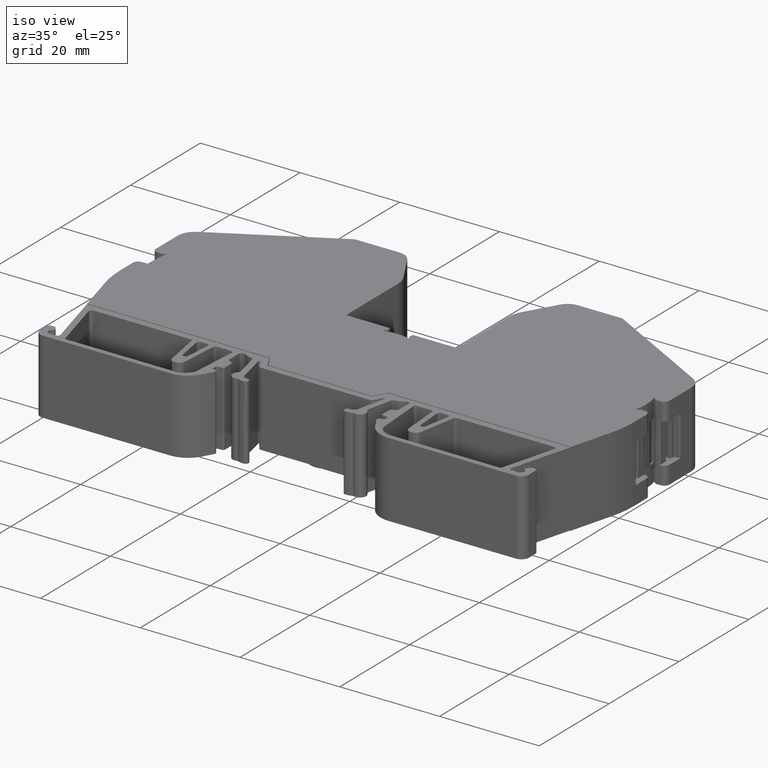
[diagram: clean part render]
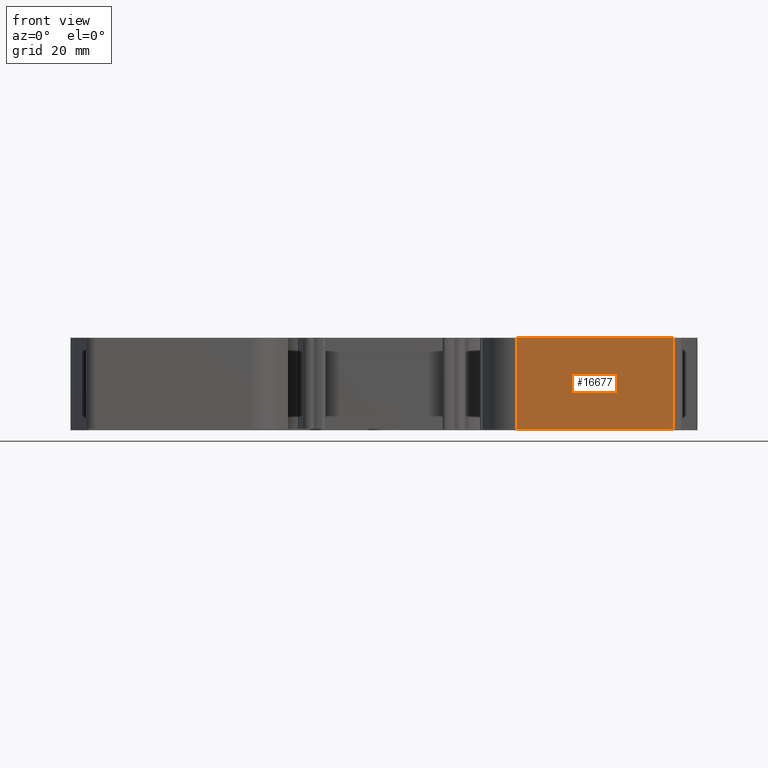
[diagram: tour spotlight — one face highlighted and labeled with its STEP entity id]
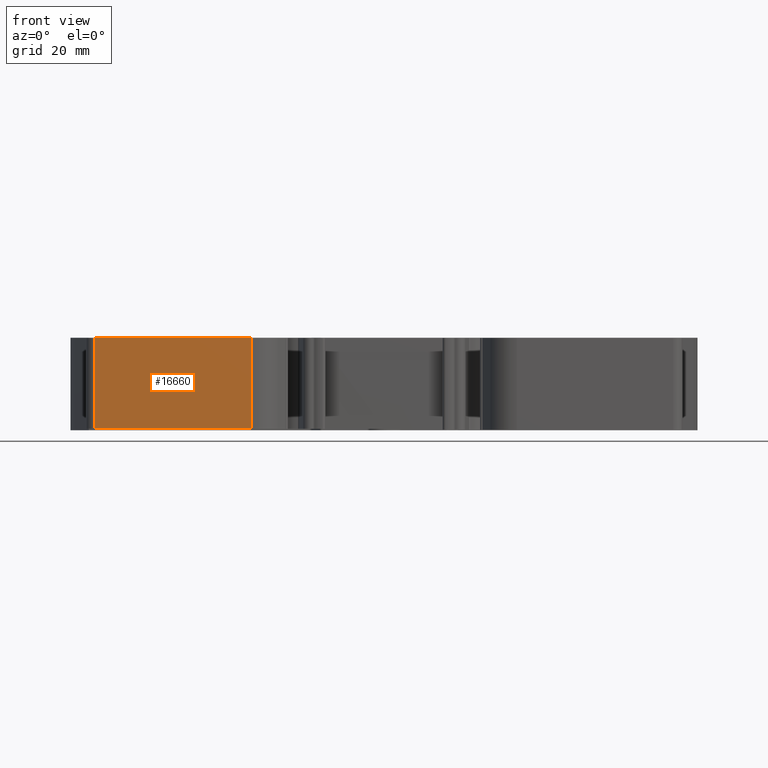
[diagram: tour spotlight — one face highlighted and labeled with its STEP entity id]
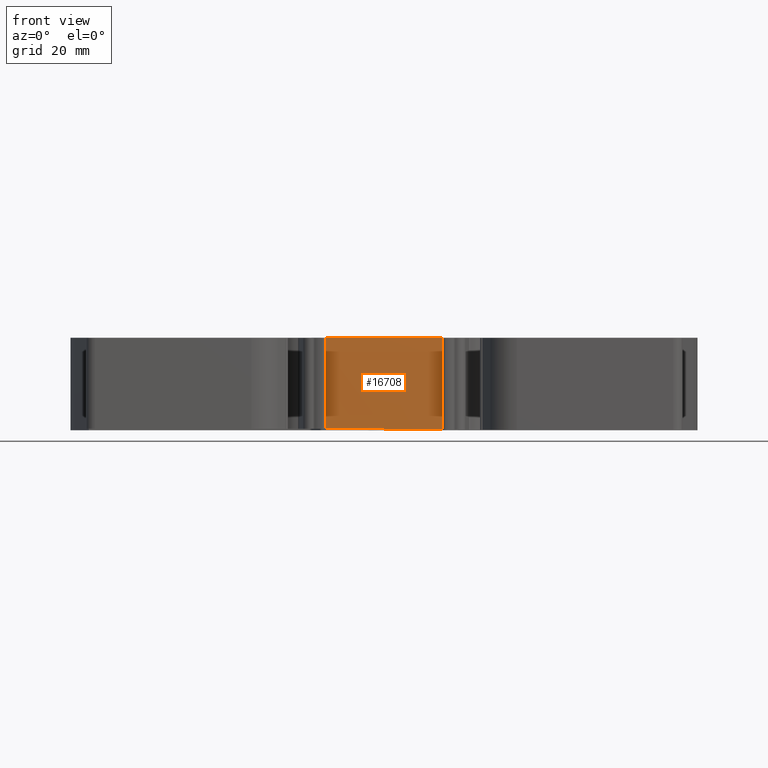
[diagram: tour spotlight — one face highlighted and labeled with its STEP entity id]
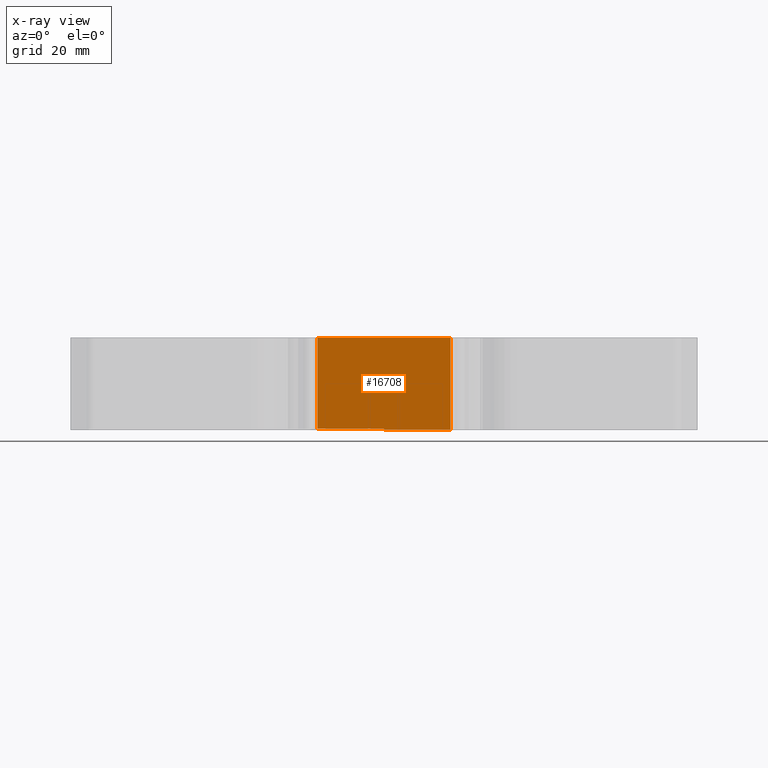
[diagram: x-ray of the same camera — body ghosted, this tour face saturated]
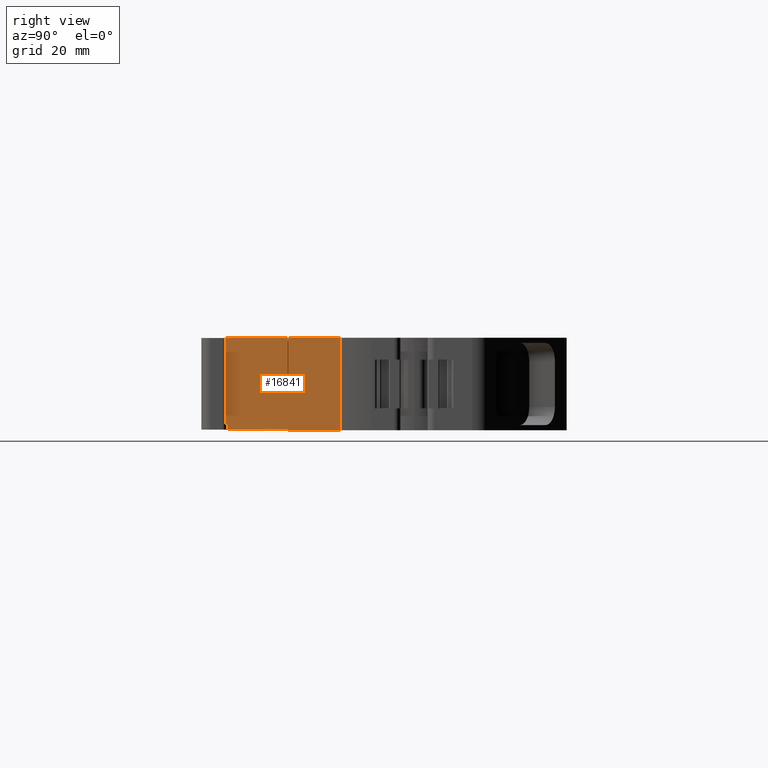
[diagram: tour spotlight — one face highlighted and labeled with its STEP entity id]
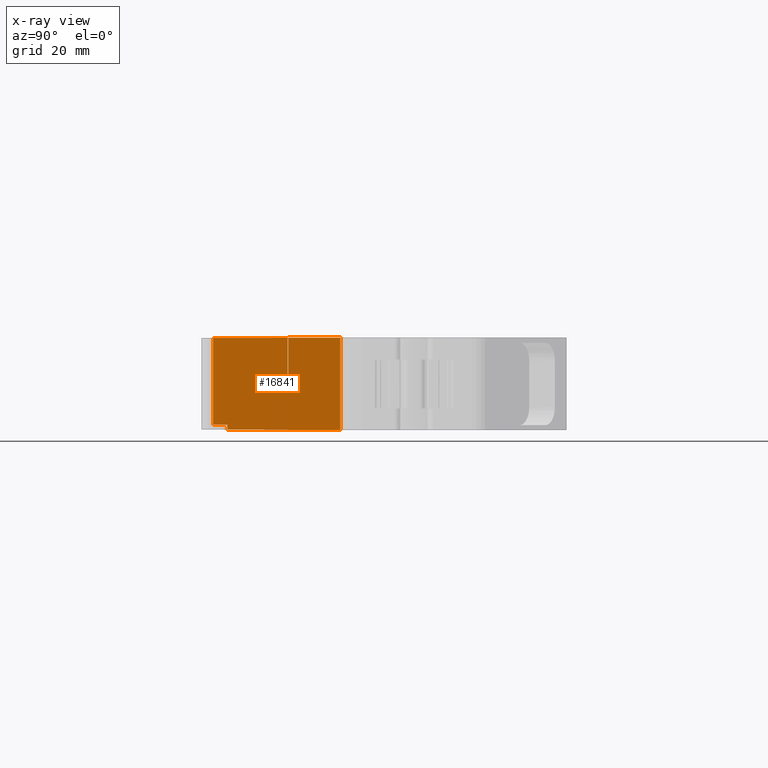
[diagram: x-ray of the same camera — body ghosted, this tour face saturated]
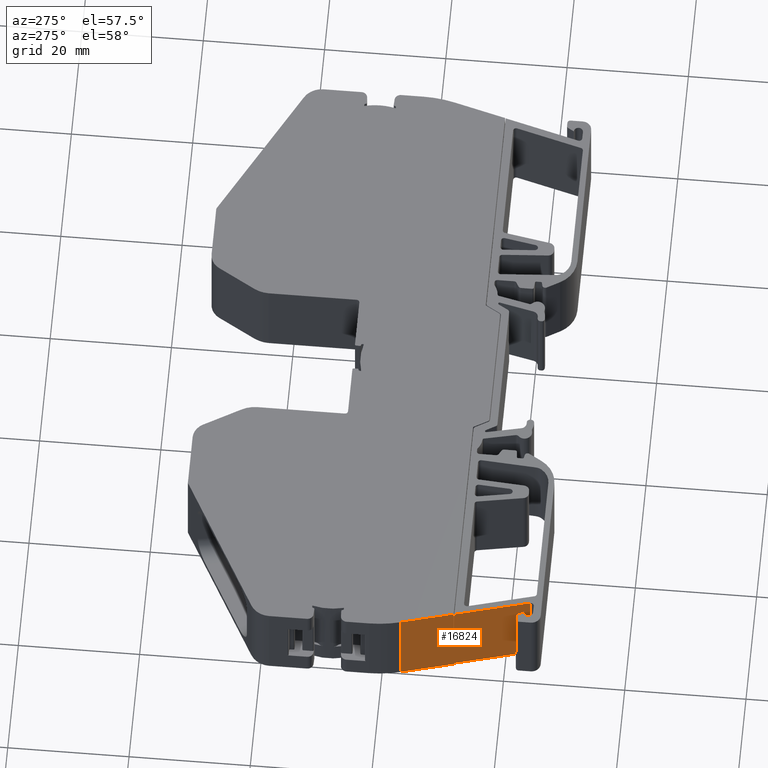
[diagram: tour spotlight — one face highlighted and labeled with its STEP entity id]
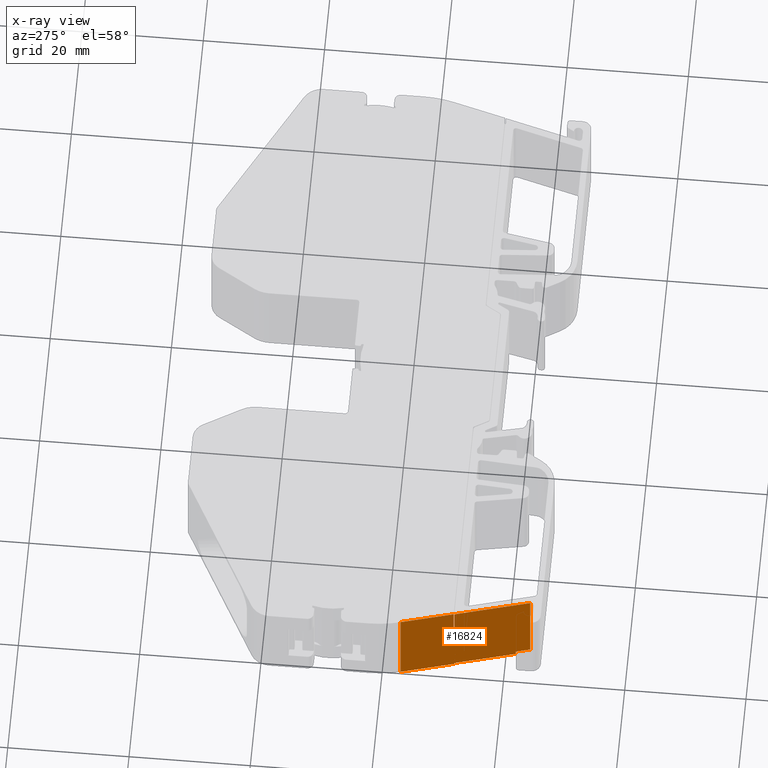
[diagram: x-ray of the same camera — body ghosted, this tour face saturated]
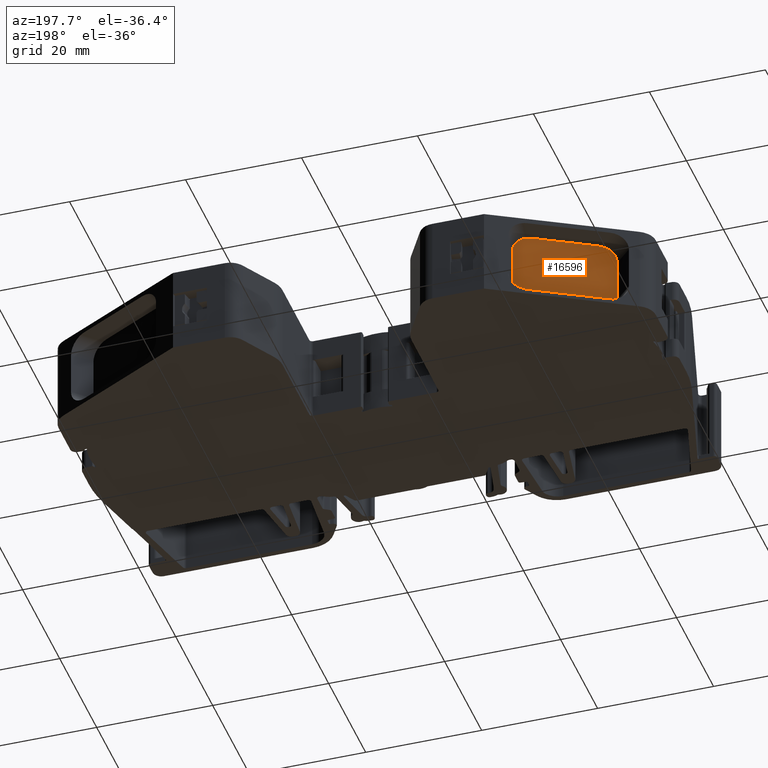
[diagram: tour spotlight — one face highlighted and labeled with its STEP entity id]
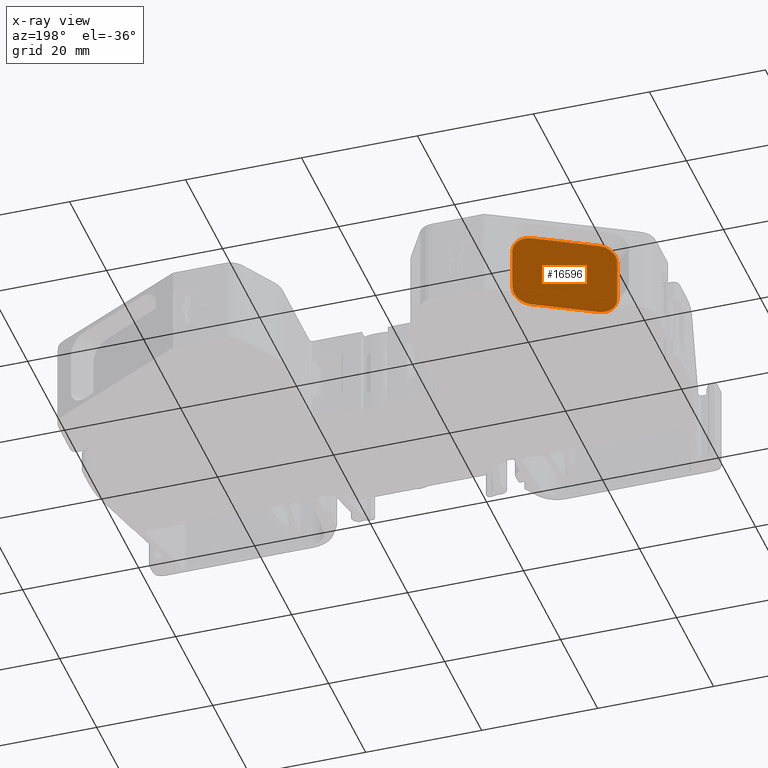
[diagram: x-ray of the same camera — body ghosted, this tour face saturated]
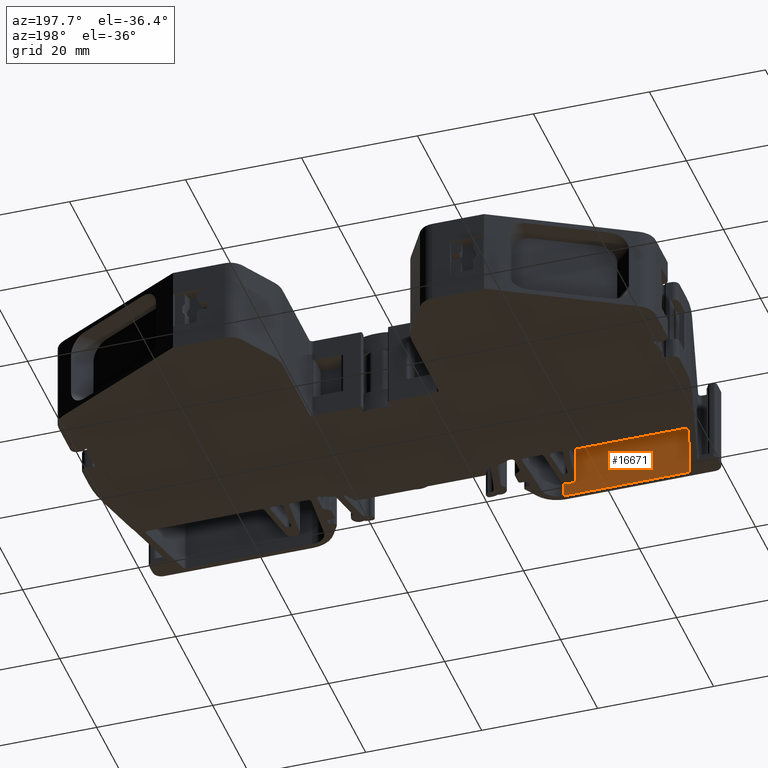
[diagram: tour spotlight — one face highlighted and labeled with its STEP entity id]
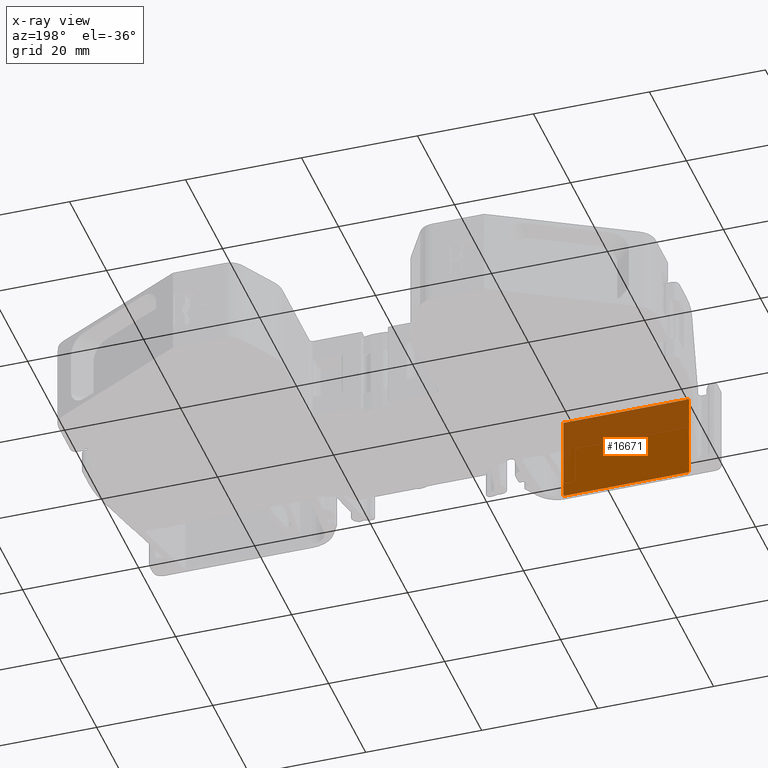
[diagram: x-ray of the same camera — body ghosted, this tour face saturated]
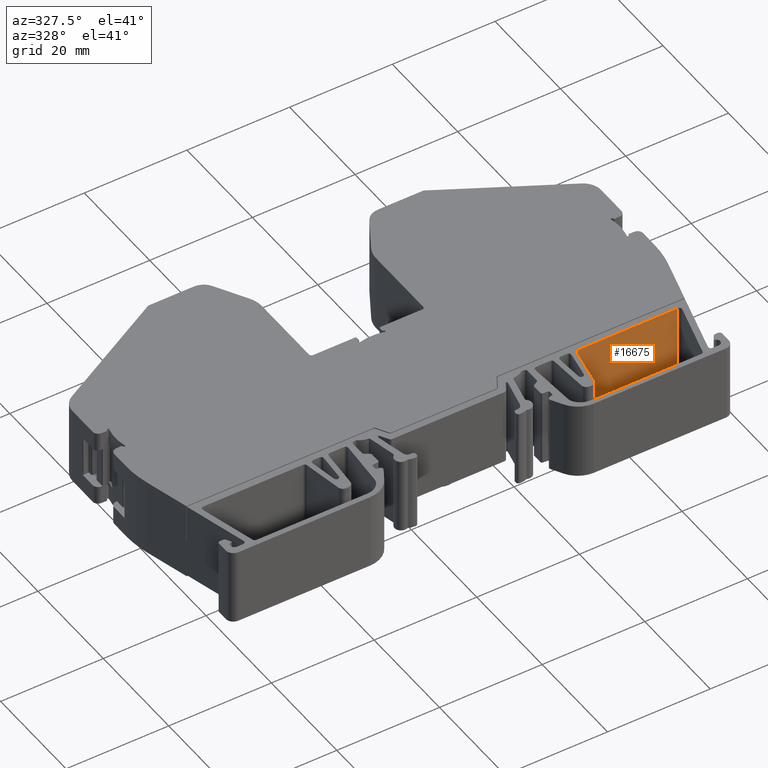
[diagram: tour spotlight — one face highlighted and labeled with its STEP entity id]
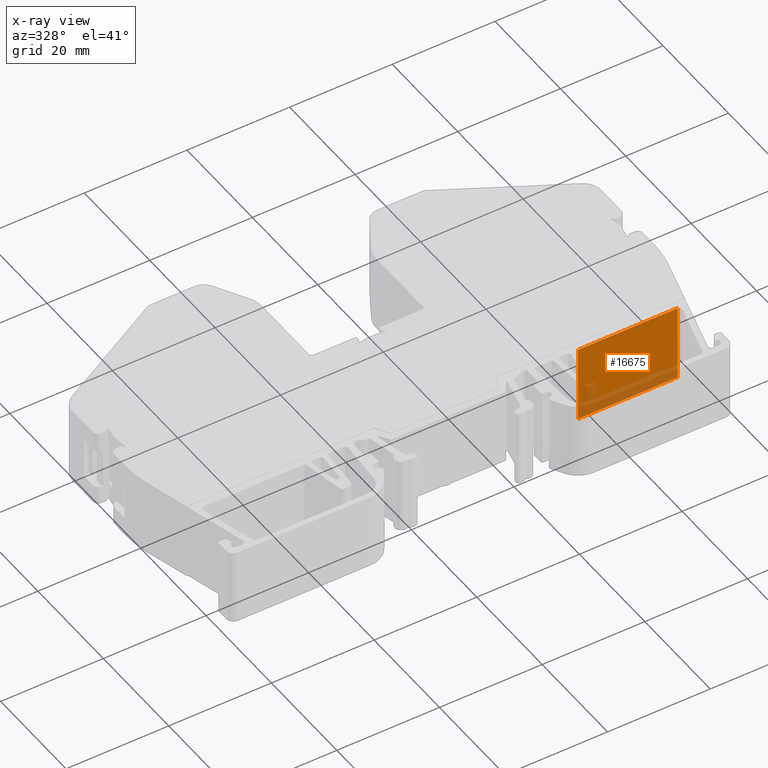
[diagram: x-ray of the same camera — body ghosted, this tour face saturated]
A machine part: a face-by-face anatomy tour. The part has 469 B-rep faces; the first image is the clean iso view, then the 8 largest visible faces are spotlighted one at a time (largest first), each with its STEP entity span.

Face 1 — front view, entity #16677. In plain terms, the highlighted planar face has unit normal (0, -1, 0).
Definition (entity closure, byte-faithful):
#1433 = CARTESIAN_POINT ( 'NONE',  ( 1351.807268331747100, 394.0762368409457400, 0.0000000000000000000 ) ) ;
#1434 = CARTESIAN_POINT ( 'NONE',  ( 1377.505505734704000, 394.0762368409457400, 15.05000000000000100 ) ) ;
#1450 = CARTESIAN_POINT ( 'NONE',  ( 1351.807268331747100, 394.0762368409455700, 15.05000000000000100 ) ) ;
#1491 = CARTESIAN_POINT ( 'NONE',  ( 1377.505505734704000, 394.0762368409459700, 0.0000000000000000000 ) ) ;
#3819 = EDGE_CURVE ( 'NONE', #11757, #11683, #9414, .T. ) ;
#3878 = EDGE_CURVE ( 'NONE', #11658, #11683, #9463, .T. ) ;
#3882 = EDGE_CURVE ( 'NONE', #11664, #11658, #9519, .T. ) ;
#3896 = EDGE_CURVE ( 'NONE', #11757, #11664, #9510, .T. ) ;
#5151 = EDGE_LOOP ( 'NONE', ( #12714, #12741, #12710, #12814 ) ) ;
#6848 = AXIS2_PLACEMENT_3D ( 'NONE', #10319, #10340, #10342 ) ;
#9411 = DIRECTION ( 'NONE',  ( -0.0000000000000000000, 0.0000000000000000000, 1.000000000000000000 ) ) ;
#9414 = LINE ( 'NONE', #9441, #13356 ) ;
#9441 = CARTESIAN_POINT ( 'NONE',  ( 1377.505505734704000, 394.0762368409459700, 15.00000000000000000 ) ) ;
#9463 = LINE ( 'NONE', #9473, #13338 ) ;
#9473 = CARTESIAN_POINT ( 'NONE',  ( 1317.764323151782500, 394.0762368409455700, 15.05000000000000100 ) ) ;
#9510 = LINE ( 'NONE', #9514, #13369 ) ;
#9514 = CARTESIAN_POINT ( 'NONE',  ( 1284.302739126161900, 394.0762368409459700, 0.0000000000000000000 ) ) ;
#9516 = DIRECTION ( 'NONE',  ( -0.0000000000000000000, -0.0000000000000000000, 1.000000000000000000 ) ) ;
#9519 = LINE ( 'NONE', #9522, #13360 ) ;
#9522 = CARTESIAN_POINT ( 'NONE',  ( 1351.807268331748000, 394.0762368409455700, 15.00000000000000000 ) ) ;
#9539 = DIRECTION ( 'NONE',  ( -1.000000000000000000, 0.0000000000000000000, -0.0000000000000000000 ) ) ;
#9541 = DIRECTION ( 'NONE',  ( 1.000000000000000000, 0.0000000000000000000, -0.0000000000000000000 ) ) ;
#10319 = CARTESIAN_POINT ( 'NONE',  ( 1330.007060531839900, 394.0762368409450000, 15.00000000000000000 ) ) ;
#10329 = PLANE ( 'NONE',  #6848 ) ;
#10340 = DIRECTION ( 'NONE',  ( 1.938070292672565300E-014, -1.000000000000000000, 0.0000000000000000000 ) ) ;
#10342 = DIRECTION ( 'NONE',  ( 1.000000000000000000, 1.938070292672565300E-014, 0.0000000000000000000 ) ) ;
#10343 = FACE_OUTER_BOUND ( 'NONE', #5151, .T. ) ;
#11658 = VERTEX_POINT ( 'NONE', #1450 ) ;
#11664 = VERTEX_POINT ( 'NONE', #1433 ) ;
#11683 = VERTEX_POINT ( 'NONE', #1434 ) ;
#11757 = VERTEX_POINT ( 'NONE', #1491 ) ;
#12710 = ORIENTED_EDGE ( 'NONE', *, *, #3882, .F. ) ;
#12714 = ORIENTED_EDGE ( 'NONE', *, *, #3819, .T. ) ;
#12741 = ORIENTED_EDGE ( 'NONE', *, *, #3878, .F. ) ;
#12814 = ORIENTED_EDGE ( 'NONE', *, *, #3896, .F. ) ;
#13338 = VECTOR ( 'NONE', #9541, 1000.000000000000000 ) ;
#13356 = VECTOR ( 'NONE', #9411, 1000.000000000000000 ) ;
#13360 = VECTOR ( 'NONE', #9516, 1000.000000000000000 ) ;
#13369 = VECTOR ( 'NONE', #9539, 1000.000000000000000 ) ;
#16677 = ADVANCED_FACE ( 'NONE', ( #10343 ), #10329, .T. ) ;

Face 2 — front view, entity #16660. In plain terms, the highlighted planar face has unit normal (-0, -1, 0).
Definition (entity closure, byte-faithful):
#1472 = CARTESIAN_POINT ( 'NONE',  ( 1308.206850678388500, 394.0762368409322700, 15.05000000000000100 ) ) ;
#1481 = CARTESIAN_POINT ( 'NONE',  ( 1282.508613275430000, 394.0762368409324400, 15.05000000000000100 ) ) ;
#1522 = CARTESIAN_POINT ( 'NONE',  ( 1308.206850678388500, 394.0762368409321500, 0.1500000000000006100 ) ) ;
#1525 = CARTESIAN_POINT ( 'NONE',  ( 1282.508613275430000, 394.0762368409322700, 0.1500000000000008300 ) ) ;
#3718 = EDGE_CURVE ( 'NONE', #11717, #11763, #16062, .T. ) ;
#3986 = EDGE_CURVE ( 'NONE', #11699, #11765, #8700, .T. ) ;
#4014 = EDGE_CURVE ( 'NONE', #11765, #11763, #8753, .T. ) ;
#4025 = EDGE_CURVE ( 'NONE', #11717, #11699, #8733, .T. ) ;
#4739 = ORIENTED_EDGE ( 'NONE', *, *, #3986, .F. ) ;
#4741 = ORIENTED_EDGE ( 'NONE', *, *, #4025, .F. ) ;
#4801 = ORIENTED_EDGE ( 'NONE', *, *, #4014, .F. ) ;
#4834 = ORIENTED_EDGE ( 'NONE', *, *, #3718, .T. ) ;
#5145 = EDGE_LOOP ( 'NONE', ( #4739, #4741, #4834, #4801 ) ) ;
#6841 = AXIS2_PLACEMENT_3D ( 'NONE', #10191, #10211, #10237 ) ;
#8699 = CARTESIAN_POINT ( 'NONE',  ( 1308.206850678388500, 394.0762368409321500, 15.00000000000000000 ) ) ;
#8700 = LINE ( 'NONE', #8699, #13429 ) ;
#8719 = DIRECTION ( 'NONE',  ( 0.0000000000000000000, 0.0000000000000000000, -1.000000000000000000 ) ) ;
#8723 = DIRECTION ( 'NONE',  ( -1.000000000000000000, 0.0000000000000000000, -0.0000000000000000000 ) ) ;
#8733 = LINE ( 'NONE', #8762, #13444 ) ;
#8753 = LINE ( 'NONE', #8757, #13420 ) ;
#8757 = CARTESIAN_POINT ( 'NONE',  ( 1375.711379883971900, 394.0762368409321500, 0.1499999999999999900 ) ) ;
#8759 = DIRECTION ( 'NONE',  ( 1.000000000000000000, 0.0000000000000000000, -0.0000000000000000000 ) ) ;
#8762 = CARTESIAN_POINT ( 'NONE',  ( 1317.764323151782500, 394.0762368409324400, 15.05000000000000100 ) ) ;
#10191 = CARTESIAN_POINT ( 'NONE',  ( 1330.007058478294100, 394.0762368409315300, 15.00000000000000000 ) ) ;
#10192 = FACE_OUTER_BOUND ( 'NONE', #5145, .T. ) ;
#10205 = PLANE ( 'NONE',  #6841 ) ;
#10211 = DIRECTION ( 'NONE',  ( -1.938070292672565300E-014, -1.000000000000000000, 0.0000000000000000000 ) ) ;
#10237 = DIRECTION ( 'NONE',  ( 1.000000000000000000, -1.938070292672565300E-014, 0.0000000000000000000 ) ) ;
#11699 = VERTEX_POINT ( 'NONE', #1472 ) ;
#11717 = VERTEX_POINT ( 'NONE', #1481 ) ;
#11763 = VERTEX_POINT ( 'NONE', #1525 ) ;
#11765 = VERTEX_POINT ( 'NONE', #1522 ) ;
#13295 = VECTOR ( 'NONE', #16064, 1000.000000000000000 ) ;
#13420 = VECTOR ( 'NONE', #8723, 1000.000000000000000 ) ;
#13429 = VECTOR ( 'NONE', #8719, 1000.000000000000000 ) ;
#13444 = VECTOR ( 'NONE', #8759, 1000.000000000000000 ) ;
#16038 = CARTESIAN_POINT ( 'NONE',  ( 1282.508613275430000, 394.0762368409324400, 15.00000000000000000 ) ) ;
#16062 = LINE ( 'NONE', #16038, #13295 ) ;
#16064 = DIRECTION ( 'NONE',  ( -0.0000000000000000000, -0.0000000000000000000, -1.000000000000000000 ) ) ;
#16660 = ADVANCED_FACE ( 'NONE', ( #10192 ), #10205, .T. ) ;

Face 3 — front view, entity #16708. An x-ray twin of the same camera follows (body ghosted, this face saturated) — the face is partly hidden behind the body. In plain terms, the highlighted planar face has unit normal (-0, 1, 0).
Definition (entity closure, byte-faithful):
#1145 = CARTESIAN_POINT ( 'NONE',  ( 1319.058253966650000, 404.4015270294932500, 15.05000000000000200 ) ) ;
#1283 = CARTESIAN_POINT ( 'NONE',  ( 1340.955865043486000, 404.4015270294959200, 15.05000000000000200 ) ) ;
#1342 = CARTESIAN_POINT ( 'NONE',  ( 1319.058253966650000, 404.4015270294875100, 0.1500000000000003800 ) ) ;
#1352 = CARTESIAN_POINT ( 'NONE',  ( 1340.955865043486000, 404.4015270294959800, 0.0000000000000000000 ) ) ;
#1422 = CARTESIAN_POINT ( 'NONE',  ( 1330.033742804469100, 404.4015270294959200, 0.0000000000000000000 ) ) ;
#1461 = CARTESIAN_POINT ( 'NONE',  ( 1329.980376204197900, 404.4015270295032600, 0.1500000000000004700 ) ) ;
#1535 = CARTESIAN_POINT ( 'NONE',  ( 1330.007059505069900, 404.4014676951964600, 0.1500000000000008300 ) ) ;
#2876 = DIRECTION ( 'NONE',  ( -5.070064584348280300E-015, 1.000000000000000000, 0.0000000000000000000 ) ) ;
#2921 = PLANE ( 'NONE',  #6938 ) ;
#2922 = FACE_OUTER_BOUND ( 'NONE', #5095, .T. ) ;
#2932 = CARTESIAN_POINT ( 'NONE',  ( 1330.007060531841900, 404.4015270294959800, 15.00000000000000000 ) ) ;
#2965 = DIRECTION ( 'NONE',  ( -1.000000000000000000, -5.070064584348280300E-015, 0.0000000000000000000 ) ) ;
#3357 = EDGE_CURVE ( 'NONE', #11393, #11311, #12855, .T. ) ;
#3499 = EDGE_CURVE ( 'NONE', #11387, #11362, #15120, .T. ) ;
#3931 = EDGE_CURVE ( 'NONE', #11746, #11647, #14051, .T. ) ;
#3948 = EDGE_CURVE ( 'NONE', #11647, #11393, #8657, .T. ) ;
#3980 = EDGE_CURVE ( 'NONE', #11311, #11387, #8705, .T. ) ;
#4064 = EDGE_CURVE ( 'NONE', #11649, #11746, #14053, .T. ) ;
#4073 = EDGE_CURVE ( 'NONE', #11362, #11649, #8823, .T. ) ;
#5095 = EDGE_LOOP ( 'NONE', ( #12879, #12895, #12831, #12871, #12925, #12878, #12793 ) ) ;
#6938 = AXIS2_PLACEMENT_3D ( 'NONE', #2932, #2876, #2965 ) ;
#8631 = CARTESIAN_POINT ( 'NONE',  ( 1375.711379883971900, 404.4015270295012100, 0.1499999999999999900 ) ) ;
#8635 = CARTESIAN_POINT ( 'NONE',  ( 1329.998164954167400, 404.4014083608969400, 0.1500000000000008300 ) ) ;
#8638 = DIRECTION ( 'NONE',  ( -1.000000000000000000, 0.0000000000000000000, -0.0000000000000000000 ) ) ;
#8646 = CARTESIAN_POINT ( 'NONE',  ( 1329.989270403266100, 404.4014479176224800, 0.1500000000000008300 ) ) ;
#8657 = LINE ( 'NONE', #8631, #13380 ) ;
#8666 = CARTESIAN_POINT ( 'NONE',  ( 1329.980376204197900, 404.4015270295032600, 0.1500000000000004700 ) ) ;
#8669 = CARTESIAN_POINT ( 'NONE',  ( 1330.007059505069900, 404.4014676951964600, 0.1500000000000008300 ) ) ;
#8682 = CARTESIAN_POINT ( 'NONE',  ( 1317.764323151782500, 404.4015270294959200, 15.05000000000000100 ) ) ;
#8705 = LINE ( 'NONE', #8682, #13412 ) ;
#8707 = DIRECTION ( 'NONE',  ( 1.000000000000000000, 0.0000000000000000000, -0.0000000000000000000 ) ) ;
#8816 = CARTESIAN_POINT ( 'NONE',  ( 1330.015954055481200, 404.4014083608969400, 0.1000000000000005600 ) ) ;
#8819 = CARTESIAN_POINT ( 'NONE',  ( 1330.024848605892000, 404.4014479176182100, 0.05000000000000027300 ) ) ;
#8821 = CARTESIAN_POINT ( 'NONE',  ( 1330.033742804469100, 404.4015270294959200, 0.0000000000000000000 ) ) ;
#8823 = LINE ( 'NONE', #8851, #13765 ) ;
#8841 = DIRECTION ( 'NONE',  ( -1.000000000000000000, 0.0000000000000000000, -0.0000000000000000000 ) ) ;
#8847 = CARTESIAN_POINT ( 'NONE',  ( 1330.007059505069900, 404.4014676951964600, 0.1500000000000008300 ) ) ;
#8851 = CARTESIAN_POINT ( 'NONE',  ( 1284.302739126161900, 404.4015270294960400, 0.0000000000000000000 ) ) ;
#11311 = VERTEX_POINT ( 'NONE', #1145 ) ;
#11362 = VERTEX_POINT ( 'NONE', #1352 ) ;
#11387 = VERTEX_POINT ( 'NONE', #1283 ) ;
#11393 = VERTEX_POINT ( 'NONE', #1342 ) ;
#11647 = VERTEX_POINT ( 'NONE', #1461 ) ;
#11649 = VERTEX_POINT ( 'NONE', #1422 ) ;
#11746 = VERTEX_POINT ( 'NONE', #1535 ) ;
#12793 = ORIENTED_EDGE ( 'NONE', *, *, #3980, .F. ) ;
#12831 = ORIENTED_EDGE ( 'NONE', *, *, #3931, .F. ) ;
#12850 = CARTESIAN_POINT ( 'NONE',  ( 1319.058253966650000, 404.4015270294959200, 15.00000000000000000 ) ) ;
#12855 = LINE ( 'NONE', #12850, #13793 ) ;
#12871 = ORIENTED_EDGE ( 'NONE', *, *, #4064, .F. ) ;
#12872 = DIRECTION ( 'NONE',  ( 0.0000000000000000000, 0.0000000000000000000, 1.000000000000000000 ) ) ;
#12878 = ORIENTED_EDGE ( 'NONE', *, *, #3499, .F. ) ;
#12879 = ORIENTED_EDGE ( 'NONE', *, *, #3357, .F. ) ;
#12895 = ORIENTED_EDGE ( 'NONE', *, *, #3948, .F. ) ;
#12925 = ORIENTED_EDGE ( 'NONE', *, *, #4073, .F. ) ;
#13380 = VECTOR ( 'NONE', #8638, 1000.000000000000000 ) ;
#13412 = VECTOR ( 'NONE', #8707, 1000.000000000000000 ) ;
#13765 = VECTOR ( 'NONE', #8841, 1000.000000000000000 ) ;
#13793 = VECTOR ( 'NONE', #12872, 1000.000000000000000 ) ;
#13841 = VECTOR ( 'NONE', #15133, 1000.000000000000000 ) ;
#14051 = B_SPLINE_CURVE_WITH_KNOTS ( 'NONE', 3,
 ( #8669, #8635, #8646, #8666 ),
 .UNSPECIFIED., .F., .F.,
 ( 4, 4 ),
 ( 0.0000000000000000000, 1.000000000000000000 ),
 .UNSPECIFIED. ) ;
#14053 = B_SPLINE_CURVE_WITH_KNOTS ( 'NONE', 3,
 ( #8821, #8819, #8816, #8847 ),
 .UNSPECIFIED., .F., .F.,
 ( 4, 4 ),
 ( 0.0000000000000000000, 1.000000000000000000 ),
 .UNSPECIFIED. ) ;
#15120 = LINE ( 'NONE', #15151, #13841 ) ;
#15133 = DIRECTION ( 'NONE',  ( -0.0000000000000000000, -0.0000000000000000000, -1.000000000000000000 ) ) ;
#15151 = CARTESIAN_POINT ( 'NONE',  ( 1340.955865043486000, 404.4015270294960400, 15.00000000000000000 ) ) ;
#16708 = ADVANCED_FACE ( 'NONE', ( #2922 ), #2921, .F. ) ;

Face 4 — right view, entity #16841. An x-ray twin of the same camera follows (body ghosted, this face saturated) — the face is partly hidden behind the body. In plain terms, the highlighted planar face has unit normal (0.9659, -0.2588, 0).
Definition (entity closure, byte-faithful):
#447 = LINE ( 'NONE', #482, #6390 ) ;
#482 = CARTESIAN_POINT ( 'NONE',  ( 1378.587437217462100, 408.5426663702730800, 15.09999999999998900 ) ) ;
#490 = DIRECTION ( 'NONE',  ( -0.2588002801199447700, -0.9659308541556367300, -0.0000000000000000000 ) ) ;
#680 = LINE ( 'NONE', #698, #6512 ) ;
#698 = CARTESIAN_POINT ( 'NONE',  ( 1378.507058706203500, 408.2426663702729600, -0.09999999999999999200 ) ) ;
#713 = DIRECTION ( 'NONE',  ( 0.2588002801199459900, 0.9659308541556364000, 0.0000000000000000000 ) ) ;
#716 = DIRECTION ( 'NONE',  ( -0.0000000000000000000, -0.0000000000000000000, -1.000000000000000000 ) ) ;
#744 = CARTESIAN_POINT ( 'NONE',  ( 1380.825678770929000, 416.8965467236666900, -113.6660136188508800 ) ) ;
#755 = LINE ( 'NONE', #744, #6490 ) ;
#805 = LINE ( 'NONE', #840, #6460 ) ;
#809 = DIRECTION ( 'NONE',  ( 0.0000000000000000000, -0.0000000000000000000, -1.000000000000000000 ) ) ;
#840 = CARTESIAN_POINT ( 'NONE',  ( 1378.507058706203500, 408.2426663702729600, -113.6660136188508800 ) ) ;
#1059 = CARTESIAN_POINT ( 'NONE',  ( 1375.228414445054800, 396.0056485039247600, 15.04999999999999700 ) ) ;
#1104 = CARTESIAN_POINT ( 'NONE',  ( 1375.228414445054800, 396.0056485039247600, 0.8500000000000026400 ) ) ;
#1429 = CARTESIAN_POINT ( 'NONE',  ( 1378.507058706203500, 408.2426663702726700, 7.499999999999997300 ) ) ;
#1540 = CARTESIAN_POINT ( 'NONE',  ( 1378.533851543290200, 408.3426663702729800, 7.499999999999996400 ) ) ;
#1573 = CARTESIAN_POINT ( 'NONE',  ( 1378.507058706203500, 408.2426663702729600, 0.0000000000000000000 ) ) ;
#1594 = CARTESIAN_POINT ( 'NONE',  ( 1375.850638301845900, 398.3280000144702100, 0.0000000000000000000 ) ) ;
#1596 = CARTESIAN_POINT ( 'NONE',  ( 1378.507058706203500, 408.2426663702730100, 15.04999999999999500 ) ) ;
#1634 = CARTESIAN_POINT ( 'NONE',  ( 1380.825678770928600, 416.8965467236655500, 15.09999999999998900 ) ) ;
#1641 = CARTESIAN_POINT ( 'NONE',  ( 1380.825678770928600, 416.8965467236654900, -0.09999999999999520400 ) ) ;
#1655 = CARTESIAN_POINT ( 'NONE',  ( 1375.850638301845900, 398.3280000144702100, 0.8500000000000017500 ) ) ;
#1660 = CARTESIAN_POINT ( 'NONE',  ( 1378.533851543289500, 408.3426663702729800, 15.09999999999999400 ) ) ;
#1704 = CARTESIAN_POINT ( 'NONE',  ( 1378.507058706203500, 408.2426663702726700, -0.1000000000000009500 ) ) ;
#1942 = LINE ( 'NONE', #1956, #6659 ) ;
#1956 = CARTESIAN_POINT ( 'NONE',  ( 1375.228414445054800, 396.0056485039247600, -113.6660136188508800 ) ) ;
#2004 = DIRECTION ( 'NONE',  ( 0.0000000000000000000, -0.0000000000000000000, -1.000000000000000000 ) ) ;
#2500 = FACE_OUTER_BOUND ( 'NONE', #5312, .T. ) ;
#2521 = PLANE ( 'NONE',  #7029 ) ;
#2525 = DIRECTION ( 'NONE',  ( 0.2588002801199447700, 0.9659308541556367300, 0.0000000000000000000 ) ) ;
#2532 = CARTESIAN_POINT ( 'NONE',  ( 1378.587437217462100, 408.5426663702730800, -113.6660136188508800 ) ) ;
#2554 = DIRECTION ( 'NONE',  ( 0.9659308541556368400, -0.2588002801199448300, 0.0000000000000000000 ) ) ;
#3650 = EDGE_CURVE ( 'NONE', #11726, #11754, #15881, .T. ) ;
#4258 = EDGE_CURVE ( 'NONE', #12000, #11847, #9175, .T. ) ;
#4271 = EDGE_CURVE ( 'NONE', #11977, #11754, #9212, .T. ) ;
#4279 = EDGE_CURVE ( 'NONE', #11726, #11913, #9244, .T. ) ;
#4285 = EDGE_CURVE ( 'NONE', #11847, #11889, #9257, .T. ) ;
#4290 = EDGE_CURVE ( 'NONE', #4858, #12000, #9254, .T. ) ;
#4317 = EDGE_CURVE ( 'NONE', #11913, #4857, #9353, .T. ) ;
#4394 = EDGE_CURVE ( 'NONE', #12064, #11977, #447, .T. ) ;
#4461 = EDGE_CURVE ( 'NONE', #12153, #12062, #680, .T. ) ;
#4485 = EDGE_CURVE ( 'NONE', #12064, #12062, #755, .T. ) ;
#4505 = EDGE_CURVE ( 'NONE', #11889, #12153, #805, .T. ) ;
#4636 = EDGE_CURVE ( 'NONE', #4857, #4858, #1942, .T. ) ;
#4857 = VERTEX_POINT ( 'NONE', #1059 ) ;
#4858 = VERTEX_POINT ( 'NONE', #1104 ) ;
#5312 = EDGE_LOOP ( 'NONE', ( #5749, #5783, #5825, #5813, #5781, #5770, #5761, #5745, #5734, #5782, #5760, #5742 ) ) ;
#5734 = ORIENTED_EDGE ( 'NONE', *, *, #4279, .T. ) ;
#5742 = ORIENTED_EDGE ( 'NONE', *, *, #4290, .T. ) ;
#5745 = ORIENTED_EDGE ( 'NONE', *, *, #3650, .F. ) ;
#5749 = ORIENTED_EDGE ( 'NONE', *, *, #4258, .T. ) ;
#5760 = ORIENTED_EDGE ( 'NONE', *, *, #4636, .T. ) ;
#5761 = ORIENTED_EDGE ( 'NONE', *, *, #4271, .T. ) ;
#5770 = ORIENTED_EDGE ( 'NONE', *, *, #4394, .T. ) ;
#5781 = ORIENTED_EDGE ( 'NONE', *, *, #4485, .F. ) ;
#5782 = ORIENTED_EDGE ( 'NONE', *, *, #4317, .T. ) ;
#5783 = ORIENTED_EDGE ( 'NONE', *, *, #4285, .T. ) ;
#5813 = ORIENTED_EDGE ( 'NONE', *, *, #4461, .T. ) ;
#5825 = ORIENTED_EDGE ( 'NONE', *, *, #4505, .T. ) ;
#6166 = VECTOR ( 'NONE', #9164, 1000.000000000000000 ) ;
#6211 = VECTOR ( 'NONE', #9204, 1000.000000000000000 ) ;
#6218 = VECTOR ( 'NONE', #9247, 1000.000000000000100 ) ;
#6241 = VECTOR ( 'NONE', #9320, 1000.000000000000100 ) ;
#6255 = VECTOR ( 'NONE', #9371, 1000.000000000000100 ) ;
#6263 = VECTOR ( 'NONE', #9249, 1000.000000000000000 ) ;
#6390 = VECTOR ( 'NONE', #490, 1000.000000000000100 ) ;
#6460 = VECTOR ( 'NONE', #809, 1000.000000000000000 ) ;
#6490 = VECTOR ( 'NONE', #716, 1000.000000000000000 ) ;
#6512 = VECTOR ( 'NONE', #713, 1000.000000000000200 ) ;
#6659 = VECTOR ( 'NONE', #2004, 1000.000000000000000 ) ;
#7029 = AXIS2_PLACEMENT_3D ( 'NONE', #2532, #2554, #2525 ) ;
#9164 = DIRECTION ( 'NONE',  ( 0.0000000000000000000, -0.0000000000000000000, -1.000000000000000000 ) ) ;
#9175 = LINE ( 'NONE', #9189, #6166 ) ;
#9189 = CARTESIAN_POINT ( 'NONE',  ( 1375.850638301845900, 398.3280000144702600, -113.6660136188508800 ) ) ;
#9204 = DIRECTION ( 'NONE',  ( 0.0000000000000000000, -0.0000000000000000000, -1.000000000000000000 ) ) ;
#9212 = LINE ( 'NONE', #9231, #6211 ) ;
#9231 = CARTESIAN_POINT ( 'NONE',  ( 1378.533851543289800, 408.3426663702732100, -113.6660136188508800 ) ) ;
#9244 = LINE ( 'NONE', #9276, #6263 ) ;
#9246 = CARTESIAN_POINT ( 'NONE',  ( 1378.587437217462100, 408.5426663702730800, 0.0000000000000000000 ) ) ;
#9247 = DIRECTION ( 'NONE',  ( 0.2588002801199447700, 0.9659308541556367300, 0.0000000000000000000 ) ) ;
#9249 = DIRECTION ( 'NONE',  ( -0.0000000000000000000, 0.0000000000000000000, 1.000000000000000000 ) ) ;
#9254 = LINE ( 'NONE', #9267, #6241 ) ;
#9257 = LINE ( 'NONE', #9246, #6218 ) ;
#9267 = CARTESIAN_POINT ( 'NONE',  ( 1378.587437217462100, 408.5426663702730800, 0.8500000000000035300 ) ) ;
#9276 = CARTESIAN_POINT ( 'NONE',  ( 1378.507058706203500, 408.2426663702728400, -113.6660136188508800 ) ) ;
#9320 = DIRECTION ( 'NONE',  ( 0.2588002801199447700, 0.9659308541556367300, 0.0000000000000000000 ) ) ;
#9353 = LINE ( 'NONE', #9361, #6255 ) ;
#9361 = CARTESIAN_POINT ( 'NONE',  ( 1378.587437217462100, 408.5426663702730800, 15.04999999999999400 ) ) ;
#9371 = DIRECTION ( 'NONE',  ( -0.2588002801199447700, -0.9659308541556367300, -0.0000000000000000000 ) ) ;
#11726 = VERTEX_POINT ( 'NONE', #1429 ) ;
#11754 = VERTEX_POINT ( 'NONE', #1540 ) ;
#11847 = VERTEX_POINT ( 'NONE', #1594 ) ;
#11889 = VERTEX_POINT ( 'NONE', #1573 ) ;
#11913 = VERTEX_POINT ( 'NONE', #1596 ) ;
#11977 = VERTEX_POINT ( 'NONE', #1660 ) ;
#12000 = VERTEX_POINT ( 'NONE', #1655 ) ;
#12062 = VERTEX_POINT ( 'NONE', #1641 ) ;
#12064 = VERTEX_POINT ( 'NONE', #1634 ) ;
#12153 = VERTEX_POINT ( 'NONE', #1704 ) ;
#13871 = VECTOR ( 'NONE', #15864, 1000.000000000000100 ) ;
#15834 = CARTESIAN_POINT ( 'NONE',  ( 1378.507058706203700, 408.2426663702727900, 7.500000000000000000 ) ) ;
#15864 = DIRECTION ( 'NONE',  ( 0.2588002801235814700, 0.9659308541546624000, 0.0000000000000000000 ) ) ;
#15881 = LINE ( 'NONE', #15834, #13871 ) ;
#16841 = ADVANCED_FACE ( 'NONE', ( #2500 ), #2521, .T. ) ;

Face 5 — auxiliary view, entity #16824. An x-ray twin of the same camera follows (body ghosted, this face saturated) — the face is partly hidden behind the body. In plain terms, the highlighted planar face has unit normal (-0.9659, -0.2588, 0).
Definition (entity closure, byte-faithful):
#324 = DIRECTION ( 'NONE',  ( -0.0000000000000000000, -0.0000000000000000000, -1.000000000000000000 ) ) ;
#327 = LINE ( 'NONE', #332, #6332 ) ;
#332 = CARTESIAN_POINT ( 'NONE',  ( 1281.507060303932600, 408.2426663702598300, -113.6660136188508800 ) ) ;
#578 = LINE ( 'NONE', #581, #6420 ) ;
#581 = CARTESIAN_POINT ( 'NONE',  ( 1279.188440239205600, 416.8965467236529300, 15.10000000000004400 ) ) ;
#582 = DIRECTION ( 'NONE',  ( -0.2588002801200688900, 0.9659308541556034200, -0.0000000000000000000 ) ) ;
#705 = CARTESIAN_POINT ( 'NONE',  ( 1279.188440239205600, 416.8965467236529300, -113.6660136188508800 ) ) ;
#707 = DIRECTION ( 'NONE',  ( -0.0000000000000000000, -0.0000000000000000000, -1.000000000000000000 ) ) ;
#709 = LINE ( 'NONE', #705, #6467 ) ;
#806 = CARTESIAN_POINT ( 'NONE',  ( 1281.507060303932600, 408.2426663702594900, 0.1499999999999999900 ) ) ;
#808 = DIRECTION ( 'NONE',  ( 0.2588002801200924900, -0.9659308541555972100, 0.0000000000000000000 ) ) ;
#817 = CARTESIAN_POINT ( 'NONE',  ( 1279.188440239205600, 416.8965467236529300, -0.09999999999999999200 ) ) ;
#821 = LINE ( 'NONE', #806, #6555 ) ;
#832 = LINE ( 'NONE', #817, #6530 ) ;
#883 = DIRECTION ( 'NONE',  ( 0.0000000000000000000, 0.0000000000000000000, 1.000000000000000000 ) ) ;
#1061 = CARTESIAN_POINT ( 'NONE',  ( 1284.163480708291400, 398.3280000144570200, 0.8500000000000529400 ) ) ;
#1070 = CARTESIAN_POINT ( 'NONE',  ( 1284.163480708291400, 398.3280000144570200, 0.1500000000000476500 ) ) ;
#1459 = CARTESIAN_POINT ( 'NONE',  ( 1281.507060303932300, 408.2426663702598300, 7.500000000000047100 ) ) ;
#1463 = CARTESIAN_POINT ( 'NONE',  ( 1281.480267466846500, 408.3426663702593400, 7.500000000000059500 ) ) ;
#1504 = CARTESIAN_POINT ( 'NONE',  ( 1281.480267466846300, 408.3426663702593900, 15.10000000000004900 ) ) ;
#1557 = CARTESIAN_POINT ( 'NONE',  ( 1284.785704565082400, 396.0056485039123100, 15.05000000000004300 ) ) ;
#1590 = CARTESIAN_POINT ( 'NONE',  ( 1281.507060303932600, 408.2426663702595400, 15.05000000000009300 ) ) ;
#1592 = CARTESIAN_POINT ( 'NONE',  ( 1284.785704565082400, 396.0056485039123100, 0.8500000000000572700 ) ) ;
#1638 = CARTESIAN_POINT ( 'NONE',  ( 1281.507060303932600, 408.2426663702594300, 0.1500000000000340000 ) ) ;
#1640 = CARTESIAN_POINT ( 'NONE',  ( 1279.188440239206300, 416.8965467236504900, -0.1000000000000021400 ) ) ;
#1709 = CARTESIAN_POINT ( 'NONE',  ( 1279.188440239206300, 416.8965467236507200, 15.10000000000003000 ) ) ;
#1784 = CARTESIAN_POINT ( 'NONE',  ( 1281.507060303932600, 408.2426663702594900, -0.1000000000000000100 ) ) ;
#1967 = DIRECTION ( 'NONE',  ( 0.0000000000000000000, 0.0000000000000000000, 1.000000000000000000 ) ) ;
#1997 = LINE ( 'NONE', #2002, #6691 ) ;
#2002 = CARTESIAN_POINT ( 'NONE',  ( 1284.163480708291400, 398.3280000144569600, -113.6660136188508800 ) ) ;
#2320 = DIRECTION ( 'NONE',  ( -0.9659308541556036500, -0.2588002801200689500, 0.0000000000000000000 ) ) ;
#2321 = PLANE ( 'NONE',  #7063 ) ;
#2343 = FACE_OUTER_BOUND ( 'NONE', #5287, .T. ) ;
#2344 = CARTESIAN_POINT ( 'NONE',  ( 1279.188440239205600, 416.8965467236529300, -113.6660136188508800 ) ) ;
#2353 = DIRECTION ( 'NONE',  ( 0.2588002801200688900, -0.9659308541556034200, 0.0000000000000000000 ) ) ;
#3859 = EDGE_CURVE ( 'NONE', #11701, #11713, #9497, .T. ) ;
#4262 = EDGE_CURVE ( 'NONE', #11701, #11838, #9176, .T. ) ;
#4266 = EDGE_CURVE ( 'NONE', #4861, #11866, #9229, .T. ) ;
#4286 = EDGE_CURVE ( 'NONE', #11866, #11896, #9253, .T. ) ;
#4302 = EDGE_CURVE ( 'NONE', #11981, #4869, #9330, .T. ) ;
#4315 = EDGE_CURVE ( 'NONE', #11896, #11898, #9407, .T. ) ;
#4347 = EDGE_CURVE ( 'NONE', #11898, #11713, #327, .T. ) ;
#4441 = EDGE_CURVE ( 'NONE', #11838, #12078, #578, .T. ) ;
#4467 = EDGE_CURVE ( 'NONE', #12078, #12044, #709, .T. ) ;
#4506 = EDGE_CURVE ( 'NONE', #12044, #12190, #832, .T. ) ;
#4517 = EDGE_CURVE ( 'NONE', #12190, #11981, #821, .T. ) ;
#4637 = EDGE_CURVE ( 'NONE', #4869, #4861, #1997, .T. ) ;
#4861 = VERTEX_POINT ( 'NONE', #1061 ) ;
#4869 = VERTEX_POINT ( 'NONE', #1070 ) ;
#5287 = EDGE_LOOP ( 'NONE', ( #5718, #5726, #5672, #5712, #5671, #5729, #5704, #5708, #5787, #5713, #5727, #5666 ) ) ;
#5666 = ORIENTED_EDGE ( 'NONE', *, *, #4286, .T. ) ;
#5671 = ORIENTED_EDGE ( 'NONE', *, *, #4441, .T. ) ;
#5672 = ORIENTED_EDGE ( 'NONE', *, *, #3859, .F. ) ;
#5704 = ORIENTED_EDGE ( 'NONE', *, *, #4506, .T. ) ;
#5708 = ORIENTED_EDGE ( 'NONE', *, *, #4517, .T. ) ;
#5712 = ORIENTED_EDGE ( 'NONE', *, *, #4262, .T. ) ;
#5713 = ORIENTED_EDGE ( 'NONE', *, *, #4637, .T. ) ;
#5718 = ORIENTED_EDGE ( 'NONE', *, *, #4315, .T. ) ;
#5726 = ORIENTED_EDGE ( 'NONE', *, *, #4347, .T. ) ;
#5727 = ORIENTED_EDGE ( 'NONE', *, *, #4266, .T. ) ;
#5729 = ORIENTED_EDGE ( 'NONE', *, *, #4467, .T. ) ;
#5787 = ORIENTED_EDGE ( 'NONE', *, *, #4302, .T. ) ;
#6155 = VECTOR ( 'NONE', #9208, 1000.000000000000200 ) ;
#6188 = VECTOR ( 'NONE', #9206, 1000.000000000000000 ) ;
#6245 = VECTOR ( 'NONE', #9264, 1000.000000000000000 ) ;
#6254 = VECTOR ( 'NONE', #9392, 1000.000000000000200 ) ;
#6265 = VECTOR ( 'NONE', #9336, 1000.000000000000200 ) ;
#6332 = VECTOR ( 'NONE', #324, 1000.000000000000000 ) ;
#6420 = VECTOR ( 'NONE', #582, 1000.000000000000200 ) ;
#6467 = VECTOR ( 'NONE', #707, 1000.000000000000000 ) ;
#6530 = VECTOR ( 'NONE', #808, 1000.000000000000200 ) ;
#6555 = VECTOR ( 'NONE', #883, 1000.000000000000000 ) ;
#6691 = VECTOR ( 'NONE', #1967, 1000.000000000000000 ) ;
#7063 = AXIS2_PLACEMENT_3D ( 'NONE', #2344, #2320, #2353 ) ;
#9176 = LINE ( 'NONE', #9178, #6188 ) ;
#9178 = CARTESIAN_POINT ( 'NONE',  ( 1281.480267466846300, 408.3426663702593900, -113.6660136188508800 ) ) ;
#9205 = CARTESIAN_POINT ( 'NONE',  ( 1279.188440239205600, 416.8965467236529300, 0.8500000000000868000 ) ) ;
#9206 = DIRECTION ( 'NONE',  ( 0.0000000000000000000, 0.0000000000000000000, 1.000000000000000000 ) ) ;
#9208 = DIRECTION ( 'NONE',  ( 0.2588002801200688900, -0.9659308541556034200, 0.0000000000000000000 ) ) ;
#9229 = LINE ( 'NONE', #9205, #6155 ) ;
#9253 = LINE ( 'NONE', #9258, #6245 ) ;
#9258 = CARTESIAN_POINT ( 'NONE',  ( 1284.785704565082400, 396.0056485039123700, -113.6660136188508800 ) ) ;
#9264 = DIRECTION ( 'NONE',  ( 0.0000000000000000000, 0.0000000000000000000, 1.000000000000000000 ) ) ;
#9330 = LINE ( 'NONE', #9362, #6265 ) ;
#9336 = DIRECTION ( 'NONE',  ( 0.2588002801200688900, -0.9659308541556034200, 0.0000000000000000000 ) ) ;
#9362 = CARTESIAN_POINT ( 'NONE',  ( 1279.188440239205600, 416.8965467236529300, 0.1500000000000667500 ) ) ;
#9392 = DIRECTION ( 'NONE',  ( -0.2588002801200688900, 0.9659308541556034200, -0.0000000000000000000 ) ) ;
#9405 = CARTESIAN_POINT ( 'NONE',  ( 1279.188440239205600, 416.8965467236529300, 15.05000000000010600 ) ) ;
#9407 = LINE ( 'NONE', #9405, #6254 ) ;
#9481 = DIRECTION ( 'NONE',  ( 0.2588002801127810600, -0.9659308541575563100, 0.0000000000000000000 ) ) ;
#9494 = CARTESIAN_POINT ( 'NONE',  ( 1281.480267466846500, 408.3426663702594500, 7.500000000000000000 ) ) ;
#9497 = LINE ( 'NONE', #9494, #13311 ) ;
#11701 = VERTEX_POINT ( 'NONE', #1463 ) ;
#11713 = VERTEX_POINT ( 'NONE', #1459 ) ;
#11838 = VERTEX_POINT ( 'NONE', #1504 ) ;
#11866 = VERTEX_POINT ( 'NONE', #1592 ) ;
#11896 = VERTEX_POINT ( 'NONE', #1557 ) ;
#11898 = VERTEX_POINT ( 'NONE', #1590 ) ;
#11981 = VERTEX_POINT ( 'NONE', #1638 ) ;
#12044 = VERTEX_POINT ( 'NONE', #1640 ) ;
#12078 = VERTEX_POINT ( 'NONE', #1709 ) ;
#12190 = VERTEX_POINT ( 'NONE', #1784 ) ;
#13311 = VECTOR ( 'NONE', #9481, 999.9999999999998900 ) ;
#16824 = ADVANCED_FACE ( 'NONE', ( #2343 ), #2321, .T. ) ;

Face 6 — auxiliary view, entity #16596. An x-ray twin of the same camera follows (body ghosted, this face saturated) — the face is partly hidden behind the body. In plain terms, the highlighted planar face has unit normal (-0.4787, 0.878, 0).
Definition (entity closure, byte-faithful):
#1312 = CARTESIAN_POINT ( 'NONE',  ( 1284.838360995159700, 439.5395081107312800, 11.24999999975303100 ) ) ;
#1372 = CARTESIAN_POINT ( 'NONE',  ( 1284.838360995159700, 439.5395081107312800, 3.749999999899086100 ) ) ;
#1378 = CARTESIAN_POINT ( 'NONE',  ( 1297.415036150660900, 446.3963727561768500, 14.24999999999947100 ) ) ;
#1380 = CARTESIAN_POINT ( 'NONE',  ( 1297.415036150660900, 446.3963727561768500, 0.7500000000005212500 ) ) ;
#1394 = CARTESIAN_POINT ( 'NONE',  ( 1300.232798892526500, 447.9326307484570300, 3.749999999756977500 ) ) ;
#1417 = CARTESIAN_POINT ( 'NONE',  ( 1287.584034913720000, 441.0364629248868500, 14.24999999999946500 ) ) ;
#1465 = CARTESIAN_POINT ( 'NONE',  ( 1287.584034913720000, 441.0364629248868500, 0.7500000000005314600 ) ) ;
#1478 = CARTESIAN_POINT ( 'NONE',  ( 1300.232798892526500, 447.9326307484570300, 11.25000000002529500 ) ) ;
#3586 = EDGE_CURVE ( 'NONE', #11545, #11554, #7172, .T. ) ;
#3594 = EDGE_CURVE ( 'NONE', #11543, #11489, #15690, .T. ) ;
#3601 = EDGE_CURVE ( 'NONE', #11489, #11550, #7173, .T. ) ;
#3624 = EDGE_CURVE ( 'NONE', #11573, #11643, #7163, .T. ) ;
#3630 = EDGE_CURVE ( 'NONE', #11643, #11545, #15758, .T. ) ;
#3695 = EDGE_CURVE ( 'NONE', #11639, #11543, #7166, .T. ) ;
#3737 = EDGE_CURVE ( 'NONE', #11550, #11573, #16086, .T. ) ;
#3756 = EDGE_CURVE ( 'NONE', #11554, #11639, #16142, .T. ) ;
#4713 = ORIENTED_EDGE ( 'NONE', *, *, #3601, .T. ) ;
#4715 = ORIENTED_EDGE ( 'NONE', *, *, #3594, .T. ) ;
#4730 = ORIENTED_EDGE ( 'NONE', *, *, #3586, .T. ) ;
#4744 = ORIENTED_EDGE ( 'NONE', *, *, #3695, .T. ) ;
#4745 = ORIENTED_EDGE ( 'NONE', *, *, #3737, .T. ) ;
#4748 = ORIENTED_EDGE ( 'NONE', *, *, #3624, .T. ) ;
#5123 = EDGE_LOOP ( 'NONE', ( #6091, #4730, #6079, #4744, #4715, #4713, #4745, #4748 ) ) ;
#6079 = ORIENTED_EDGE ( 'NONE', *, *, #3756, .T. ) ;
#6091 = ORIENTED_EDGE ( 'NONE', *, *, #3630, .T. ) ;
#6824 = AXIS2_PLACEMENT_3D ( 'NONE', #9868, #9873, #9878 ) ;
#7163 =( BOUNDED_CURVE ( )  B_SPLINE_CURVE ( 3, ( #15753, #15754, #15704, #15716 ),
 .UNSPECIFIED., .F., .T. ) 
 B_SPLINE_CURVE_WITH_KNOTS ( ( 4, 4 ),
 ( 4.712388980384697700, 6.283185307170974500 ),
 .UNSPECIFIED. ) 
 CURVE ( )  GEOMETRIC_REPRESENTATION_ITEM ( )  RATIONAL_B_SPLINE_CURVE ( ( 1.000000000000000000, 0.8047378541263966500, 0.8047378541263966500, 1.000000000000000000 ) ) 
 REPRESENTATION_ITEM ( '' )  );
#7166 =( BOUNDED_CURVE ( )  B_SPLINE_CURVE ( 3, ( #16007, #16036, #16004, #16020 ),
 .UNSPECIFIED., .F., .T. ) 
 B_SPLINE_CURVE_WITH_KNOTS ( ( 4, 4 ),
 ( 1.570796326794896600, 3.141592653555977100 ),
 .UNSPECIFIED. ) 
 CURVE ( )  GEOMETRIC_REPRESENTATION_ITEM ( )  RATIONAL_B_SPLINE_CURVE ( ( 1.000000000000000000, 0.8047378541323354500, 0.8047378541323354500, 1.000000000000000000 ) ) 
 REPRESENTATION_ITEM ( '' )  );
#7172 =( BOUNDED_CURVE ( )  B_SPLINE_CURVE ( 3, ( #15536, #15497, #15527, #15537 ),
 .UNSPECIFIED., .F., .T. ) 
 B_SPLINE_CURVE_WITH_KNOTS ( ( 4, 4 ),
 ( 8.118575875749124100E-011, 1.570796326794888300 ),
 .UNSPECIFIED. ) 
 CURVE ( )  GEOMETRIC_REPRESENTATION_ITEM ( )  RATIONAL_B_SPLINE_CURVE ( ( 1.000000000000000000, 0.8047378541435025200, 0.8047378541435025200, 1.000000000000000000 ) ) 
 REPRESENTATION_ITEM ( '' )  );
#7173 =( BOUNDED_CURVE ( )  B_SPLINE_CURVE ( 3, ( #15602, #15662, #15615, #15598 ),
 .UNSPECIFIED., .F., .T. ) 
 B_SPLINE_CURVE_WITH_KNOTS ( ( 4, 4 ),
 ( 3.141592653507649900, 4.712388980384689700 ),
 .UNSPECIFIED. ) 
 CURVE ( )  GEOMETRIC_REPRESENTATION_ITEM ( )  RATIONAL_B_SPLINE_CURVE ( ( 1.000000000000000000, 0.8047378541050036500, 0.8047378541050036500, 1.000000000000000000 ) ) 
 REPRESENTATION_ITEM ( '' )  );
#9859 = PLANE ( 'NONE',  #6824 ) ;
#9867 = FACE_OUTER_BOUND ( 'NONE', #5123, .T. ) ;
#9868 = CARTESIAN_POINT ( 'NONE',  ( 1284.170591206318900, 439.1754367643870300, -40.47461562620925700 ) ) ;
#9873 = DIRECTION ( 'NONE',  ( -0.4786831805034075200, 0.8779877064646988100, 0.0000000000000000000 ) ) ;
#9878 = DIRECTION ( 'NONE',  ( -0.8779877064646988100, -0.4786831805034075200, 0.0000000000000000000 ) ) ;
#11489 = VERTEX_POINT ( 'NONE', #1312 ) ;
#11543 = VERTEX_POINT ( 'NONE', #1372 ) ;
#11545 = VERTEX_POINT ( 'NONE', #1394 ) ;
#11550 = VERTEX_POINT ( 'NONE', #1417 ) ;
#11554 = VERTEX_POINT ( 'NONE', #1380 ) ;
#11573 = VERTEX_POINT ( 'NONE', #1378 ) ;
#11639 = VERTEX_POINT ( 'NONE', #1465 ) ;
#11643 = VERTEX_POINT ( 'NONE', #1478 ) ;
#13275 = VECTOR ( 'NONE', #16162, 1000.000000000000200 ) ;
#13303 = VECTOR ( 'NONE', #16095, 1000.000000000000200 ) ;
#13817 = VECTOR ( 'NONE', #15767, 1000.000000000000000 ) ;
#13829 = VECTOR ( 'NONE', #15639, 1000.000000000000000 ) ;
#15497 = CARTESIAN_POINT ( 'NONE',  ( 1300.232798892392600, 447.9326307483840400, 1.992640686989388500 ) ) ;
#15527 = CARTESIAN_POINT ( 'NONE',  ( 1299.065643349190200, 447.2962918526925500, 0.7500000000005320200 ) ) ;
#15536 = CARTESIAN_POINT ( 'NONE',  ( 1300.232798892526500, 447.9326307484570300, 3.749999999756977500 ) ) ;
#15537 = CARTESIAN_POINT ( 'NONE',  ( 1297.415036150660900, 446.3963727561768500, 0.7500000000005212500 ) ) ;
#15598 = CARTESIAN_POINT ( 'NONE',  ( 1287.584034913720000, 441.0364629248868500, 14.24999999999946500 ) ) ;
#15602 = CARTESIAN_POINT ( 'NONE',  ( 1284.838360995159700, 439.5395081107312800, 11.24999999975303100 ) ) ;
#15615 = CARTESIAN_POINT ( 'NONE',  ( 1285.975656369976600, 440.1595670969570600, 14.24999999999946500 ) ) ;
#15639 = DIRECTION ( 'NONE',  ( 0.0000000000000000000, 0.0000000000000000000, 1.000000000000000000 ) ) ;
#15649 = CARTESIAN_POINT ( 'NONE',  ( 1284.838360995159700, 439.5395081107312800, 500021.4499556000800 ) ) ;
#15662 = CARTESIAN_POINT ( 'NONE',  ( 1284.838360995027600, 439.5395081106592600, 13.00735931274820700 ) ) ;
#15690 = LINE ( 'NONE', #15649, #13829 ) ;
#15704 = CARTESIAN_POINT ( 'NONE',  ( 1300.232798892512200, 447.9326307484492400, 13.00735931289401000 ) ) ;
#15716 = CARTESIAN_POINT ( 'NONE',  ( 1300.232798892526500, 447.9326307484570300, 11.25000000002529500 ) ) ;
#15753 = CARTESIAN_POINT ( 'NONE',  ( 1297.415036150660900, 446.3963727561768500, 14.24999999999947100 ) ) ;
#15754 = CARTESIAN_POINT ( 'NONE',  ( 1299.065643349285000, 447.2962918527442200, 14.24999999999946500 ) ) ;
#15758 = LINE ( 'NONE', #15771, #13817 ) ;
#15767 = DIRECTION ( 'NONE',  ( -0.0000000000000000000, -0.0000000000000000000, -1.000000000000000000 ) ) ;
#15771 = CARTESIAN_POINT ( 'NONE',  ( 1300.232798892526500, 447.9326307484570300, 500021.4499556000800 ) ) ;
#16004 = CARTESIAN_POINT ( 'NONE',  ( 1284.838360995214100, 439.5395081107610100, 1.992640687065487100 ) ) ;
#16007 = CARTESIAN_POINT ( 'NONE',  ( 1287.584034913720000, 441.0364629248868500, 0.7500000000005314600 ) ) ;
#16020 = CARTESIAN_POINT ( 'NONE',  ( 1284.838360995159700, 439.5395081107312800, 3.749999999899086100 ) ) ;
#16036 = CARTESIAN_POINT ( 'NONE',  ( 1285.975656370124600, 440.1595670970377800, 0.7500000000005295800 ) ) ;
#16086 = LINE ( 'NONE', #16125, #13303 ) ;
#16095 = DIRECTION ( 'NONE',  ( 0.8779877064646960400, 0.4786831805034126900, 0.0000000000000000000 ) ) ;
#16125 = CARTESIAN_POINT ( 'NONE',  ( 1287.584034913720000, 441.0364629248869100, 14.24999999999946400 ) ) ;
#16142 = LINE ( 'NONE', #16172, #13275 ) ;
#16162 = DIRECTION ( 'NONE',  ( -0.8779877064646960400, -0.4786831805034126900, 9.682799908392581900E-018 ) ) ;
#16172 = CARTESIAN_POINT ( 'NONE',  ( 1297.415036150660900, 446.3963727561768500, 0.7500000000005330200 ) ) ;
#16596 = ADVANCED_FACE ( 'NONE', ( #9867 ), #9859, .T. ) ;

Face 7 — auxiliary view, entity #16671. An x-ray twin of the same camera follows (body ghosted, this face saturated) — the face is partly hidden behind the body. In plain terms, the highlighted planar face has unit normal (-0, -1, 0).
Definition (entity closure, byte-faithful):
#1451 = CARTESIAN_POINT ( 'NONE',  ( 1308.357770593826000, 395.0762402979551700, 15.05000000000000100 ) ) ;
#1503 = CARTESIAN_POINT ( 'NONE',  ( 1308.357770593826000, 395.0762402979552800, 0.1500000000000008300 ) ) ;
#1868 = CARTESIAN_POINT ( 'NONE',  ( 1286.660721367909900, 395.0762402979553900, 15.05000000000000200 ) ) ;
#3331 = EDGE_CURVE ( 'NONE', #12532, #12702, #12525, .T. ) ;
#3785 = EDGE_CURVE ( 'NONE', #11657, #12532, #16188, .T. ) ;
#3816 = EDGE_CURVE ( 'NONE', #11750, #11657, #9428, .T. ) ;
#3835 = EDGE_CURVE ( 'NONE', #12702, #11750, #9445, .T. ) ;
#5130 = EDGE_LOOP ( 'NONE', ( #12627, #12677, #12739, #12812 ) ) ;
#6829 = AXIS2_PLACEMENT_3D ( 'NONE', #10262, #10267, #10273 ) ;
#9427 = CARTESIAN_POINT ( 'NONE',  ( 1308.357770593826000, 395.0762402979551700, 15.00000000000000000 ) ) ;
#9428 = LINE ( 'NONE', #9427, #13318 ) ;
#9431 = DIRECTION ( 'NONE',  ( 1.000000000000000000, -0.0000000000000000000, 0.0000000000000000000 ) ) ;
#9445 = LINE ( 'NONE', #9455, #13304 ) ;
#9451 = DIRECTION ( 'NONE',  ( 0.0000000000000000000, 0.0000000000000000000, 1.000000000000000000 ) ) ;
#9455 = CARTESIAN_POINT ( 'NONE',  ( 1375.711379883971900, 395.0762402979554500, 0.1499999999999999900 ) ) ;
#10247 = PLANE ( 'NONE',  #6829 ) ;
#10262 = CARTESIAN_POINT ( 'NONE',  ( 1330.007058478292000, 395.0762402979550000, 15.00000000000000000 ) ) ;
#10267 = DIRECTION ( 'NONE',  ( -7.675396408045541000E-015, -1.000000000000000000, 0.0000000000000000000 ) ) ;
#10271 = FACE_OUTER_BOUND ( 'NONE', #5130, .T. ) ;
#10273 = DIRECTION ( 'NONE',  ( 1.000000000000000000, -7.675396408045541000E-015, 0.0000000000000000000 ) ) ;
#10455 = CARTESIAN_POINT ( 'NONE',  ( 1286.660721367909900, 395.0762402979554500, 0.1499999999999990800 ) ) ;
#11657 = VERTEX_POINT ( 'NONE', #1451 ) ;
#11750 = VERTEX_POINT ( 'NONE', #1503 ) ;
#12502 = CARTESIAN_POINT ( 'NONE',  ( 1286.660721367909900, 395.0762402979553400, 15.00000000000000000 ) ) ;
#12525 = LINE ( 'NONE', #12502, #13768 ) ;
#12532 = VERTEX_POINT ( 'NONE', #1868 ) ;
#12556 = DIRECTION ( 'NONE',  ( -0.0000000000000000000, -0.0000000000000000000, -1.000000000000000000 ) ) ;
#12627 = ORIENTED_EDGE ( 'NONE', *, *, #3816, .F. ) ;
#12677 = ORIENTED_EDGE ( 'NONE', *, *, #3835, .F. ) ;
#12702 = VERTEX_POINT ( 'NONE', #10455 ) ;
#12739 = ORIENTED_EDGE ( 'NONE', *, *, #3331, .F. ) ;
#12812 = ORIENTED_EDGE ( 'NONE', *, *, #3785, .F. ) ;
#13304 = VECTOR ( 'NONE', #9431, 1000.000000000000000 ) ;
#13313 = VECTOR ( 'NONE', #16180, 1000.000000000000000 ) ;
#13318 = VECTOR ( 'NONE', #9451, 1000.000000000000000 ) ;
#13768 = VECTOR ( 'NONE', #12556, 1000.000000000000000 ) ;
#16180 = DIRECTION ( 'NONE',  ( -1.000000000000000000, -0.0000000000000000000, 0.0000000000000000000 ) ) ;
#16188 = LINE ( 'NONE', #16218, #13313 ) ;
#16218 = CARTESIAN_POINT ( 'NONE',  ( 1317.764323151782500, 395.0762402979551700, 15.05000000000000100 ) ) ;
#16671 = ADVANCED_FACE ( 'NONE', ( #10271 ), #10247, .F. ) ;

Face 8 — auxiliary view, entity #16675. An x-ray twin of the same camera follows (body ghosted, this face saturated) — the face is partly hidden behind the body. In plain terms, the highlighted planar face has unit normal (0, -1, 0).
Definition (entity closure, byte-faithful):
#1287 = CARTESIAN_POINT ( 'NONE',  ( 1356.764991340202000, 406.8238270224469500, 15.05000000000000200 ) ) ;
#1298 = CARTESIAN_POINT ( 'NONE',  ( 1376.232981779935900, 406.8238270224471200, 0.0000000000000000000 ) ) ;
#1305 = CARTESIAN_POINT ( 'NONE',  ( 1356.764991340202000, 406.8238270224468900, 0.0000000000000000000 ) ) ;
#1348 = CARTESIAN_POINT ( 'NONE',  ( 1376.232981779935900, 406.8238270224471200, 15.05000000000000200 ) ) ;
#3442 = EDGE_CURVE ( 'NONE', #11340, #11416, #14683, .T. ) ;
#3459 = EDGE_CURVE ( 'NONE', #11486, #11439, #14946, .T. ) ;
#3914 = EDGE_CURVE ( 'NONE', #11340, #11439, #8624, .T. ) ;
#3924 = EDGE_CURVE ( 'NONE', #11486, #11416, #8592, .T. ) ;
#5153 = EDGE_LOOP ( 'NONE', ( #12911, #12909, #12836, #12927 ) ) ;
#6838 = AXIS2_PLACEMENT_3D ( 'NONE', #10338, #10313, #10345 ) ;
#8592 = LINE ( 'NONE', #8610, #13398 ) ;
#8603 = CARTESIAN_POINT ( 'NONE',  ( 1317.764323151782500, 406.8238270224468900, 15.05000000000000100 ) ) ;
#8610 = CARTESIAN_POINT ( 'NONE',  ( 1284.302739126161900, 406.8238270224471800, 0.0000000000000000000 ) ) ;
#8620 = DIRECTION ( 'NONE',  ( -1.000000000000000000, 0.0000000000000000000, -0.0000000000000000000 ) ) ;
#8624 = LINE ( 'NONE', #8603, #13397 ) ;
#8626 = DIRECTION ( 'NONE',  ( 1.000000000000000000, 0.0000000000000000000, -0.0000000000000000000 ) ) ;
#10305 = FACE_OUTER_BOUND ( 'NONE', #5153, .T. ) ;
#10313 = DIRECTION ( 'NONE',  ( 1.425703166515882100E-014, -1.000000000000000000, 0.0000000000000000000 ) ) ;
#10318 = PLANE ( 'NONE',  #6838 ) ;
#10338 = CARTESIAN_POINT ( 'NONE',  ( 1330.007060531839900, 406.8238270224464900, 15.00000000000000000 ) ) ;
#10345 = DIRECTION ( 'NONE',  ( 1.000000000000000000, 1.425703166515882100E-014, 0.0000000000000000000 ) ) ;
#11340 = VERTEX_POINT ( 'NONE', #1287 ) ;
#11416 = VERTEX_POINT ( 'NONE', #1305 ) ;
#11439 = VERTEX_POINT ( 'NONE', #1348 ) ;
#11486 = VERTEX_POINT ( 'NONE', #1298 ) ;
#12836 = ORIENTED_EDGE ( 'NONE', *, *, #3442, .T. ) ;
#12909 = ORIENTED_EDGE ( 'NONE', *, *, #3914, .F. ) ;
#12911 = ORIENTED_EDGE ( 'NONE', *, *, #3459, .T. ) ;
#12927 = ORIENTED_EDGE ( 'NONE', *, *, #3924, .F. ) ;
#13397 = VECTOR ( 'NONE', #8626, 1000.000000000000000 ) ;
#13398 = VECTOR ( 'NONE', #8620, 1000.000000000000000 ) ;
#13824 = VECTOR ( 'NONE', #14960, 1000.000000000000000 ) ;
#13853 = VECTOR ( 'NONE', #14744, 1000.000000000000000 ) ;
#14683 = LINE ( 'NONE', #14688, #13853 ) ;
#14688 = CARTESIAN_POINT ( 'NONE',  ( 1356.764991340202000, 406.8238270224468900, 15.00000000000000000 ) ) ;
#14744 = DIRECTION ( 'NONE',  ( 0.0000000000000000000, -0.0000000000000000000, -1.000000000000000000 ) ) ;
#14946 = LINE ( 'NONE', #14962, #13824 ) ;
#14960 = DIRECTION ( 'NONE',  ( -0.0000000000000000000, 0.0000000000000000000, 1.000000000000000000 ) ) ;
#14962 = CARTESIAN_POINT ( 'NONE',  ( 1376.232981779935900, 406.8238270224471800, 15.00000000000000000 ) ) ;
#16675 = ADVANCED_FACE ( 'NONE', ( #10305 ), #10318, .T. ) ;